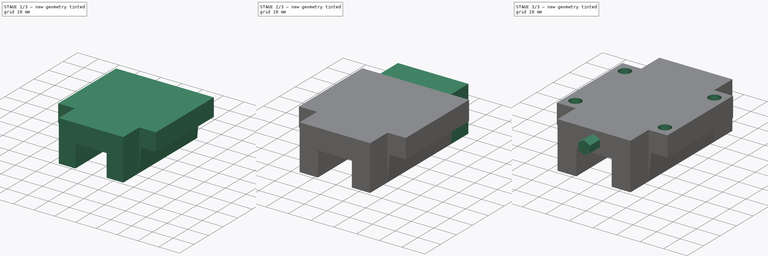
[diagram: build sequence overview — one tinted view per stage of 3, left to right]
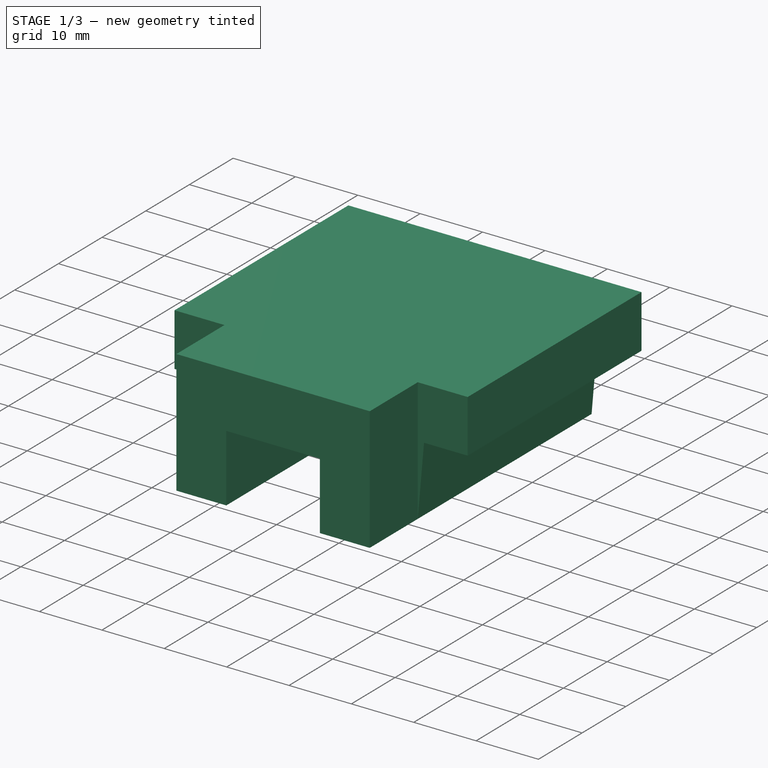
[diagram: stage 1 of 3 — iso view after this stage's code; geometry added in this stage tinted green]
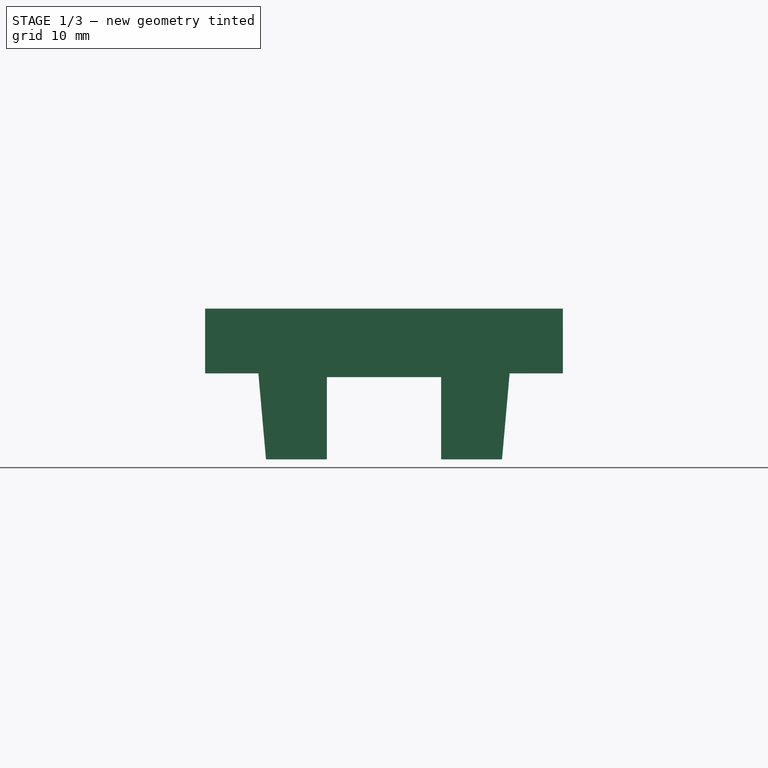
[diagram: stage 1 of 3 — front view after this stage's code; geometry added in this stage tinted green]
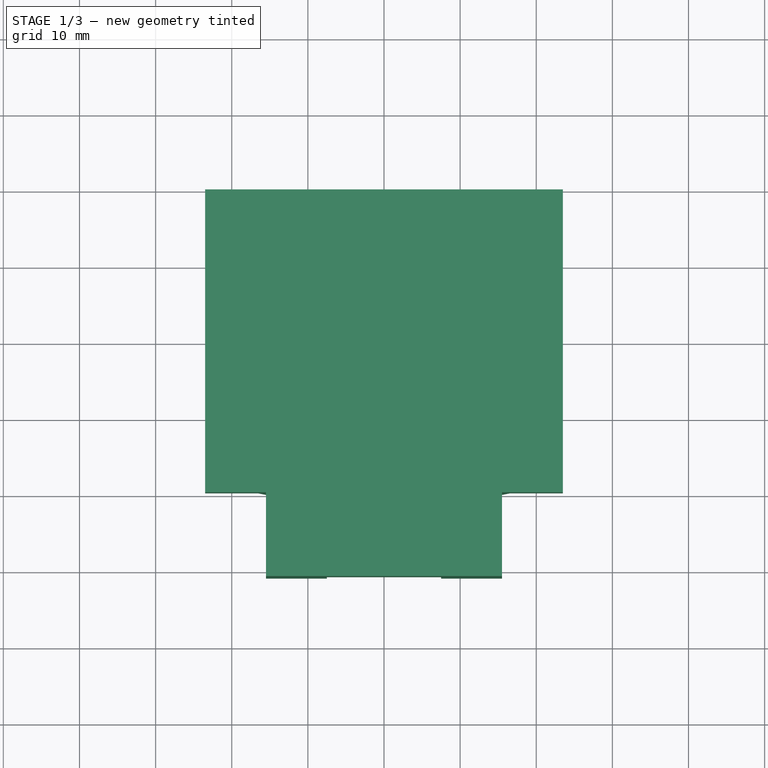
[diagram: stage 1 of 3 — top view after this stage's code; geometry added in this stage tinted green]
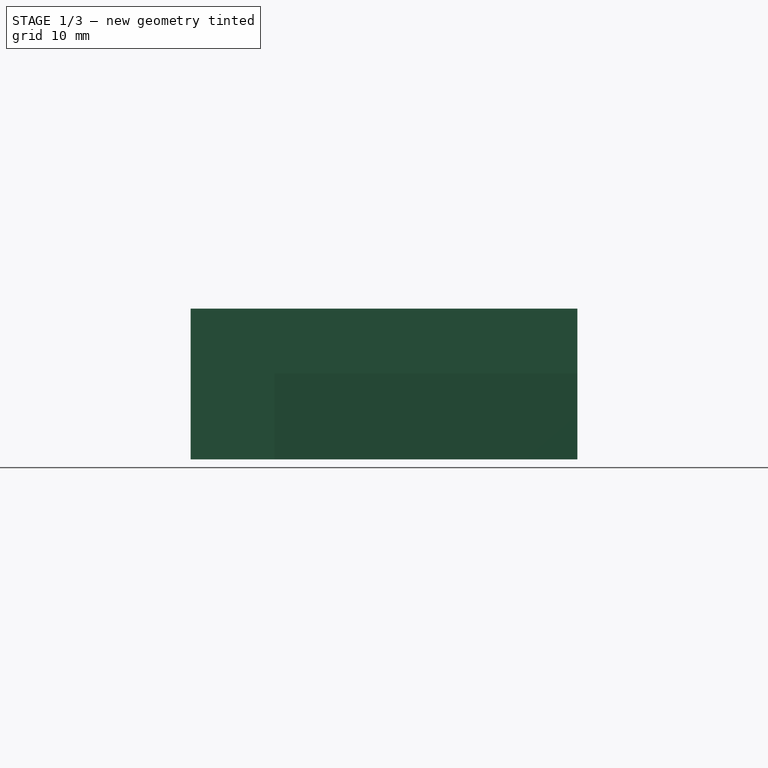
[diagram: stage 1 of 3 — right view after this stage's code; geometry added in this stage tinted green]
FCSTD DOCUMENT  (FreeCAD 0.19R)
Label: TRH15A
License: All rights reserved
LicenseURL: http://en.wikipedia.org/wiki/All_rights_reserved
objects: PartDesign::CoordinateSystem×6, Sketcher::SketchObject×5, PartDesign::Pad×4, PartDesign::Pocket×1, PartDesign::Body×1
note: 22 computed .brp shape members not serialized (recipe doc carries the construction recipe); baked Part::Feature solids carry a one-line shape summary decoded from their .brp

FEATURE [Sketcher::SketchObject] Sketch
  FullyConstrained = true
  MapMode = 5
  Placement = pos=(0,0,0) rot=(1,0,0;1.5708rad)
  Support = -> [XZ_Plane]
  sketch-geometry (12):
    g0: LineSegment StartX=-23.5 StartY=19.8 StartZ=0 EndX=23.5 EndY=19.8 EndZ=0
    g1: LineSegment StartX=-23.5 StartY=19.8 StartZ=0 EndX=-23.5 EndY=11.3 EndZ=0
    g2: LineSegment StartX=23.5 StartY=19.8 StartZ=0 EndX=23.5 EndY=11.3 EndZ=0
    g3: LineSegment StartX=-23.5 StartY=11.3 StartZ=0 EndX=-16.5 EndY=11.3 EndZ=0
    g4: LineSegment StartX=-15.5 StartY=0 StartZ=0 EndX=-16.5 EndY=11.3 EndZ=0
    g5: LineSegment StartX=-15.5 StartY=0 StartZ=0 EndX=-7.5 EndY=0 EndZ=0
    g6: LineSegment StartX=-7.5 StartY=0 StartZ=0 EndX=-7.5 EndY=10.8 EndZ=0
    g7: LineSegment StartX=-7.5 StartY=10.8 StartZ=0 EndX=7.5 EndY=10.8 EndZ=0
    g8: LineSegment StartX=7.5 StartY=10.8 StartZ=0 EndX=7.5 EndY=0 EndZ=0
    g9: LineSegment StartX=7.5 StartY=0 StartZ=0 EndX=15.5 EndY=0 EndZ=0
    g10: LineSegment StartX=15.5 StartY=0 StartZ=0 EndX=16.5 EndY=11.3 EndZ=0
    g11: LineSegment StartX=16.5 StartY=11.3 StartZ=0 EndX=23.5 EndY=11.3 EndZ=0
  constraints (34):
    c: Coincident(g1,g0)
    c: Vertical(g1)
    c: Coincident(g2,g0)
    c: Vertical(g2)
    c: Coincident(g3,g1)
    c: Horizontal(g3)
    c: Coincident(g4,g3)
    c: Coincident(g5,g4)
    c: Horizontal(g5)
    c: Coincident(g6,g5)
    c: Vertical(g6)
    c: Coincident(g7,g6)
    c: Horizontal(g7)
    c: Coincident(g8,g7)
    c: Vertical(g8)
    c: Coincident(g9,g8)
    c: Horizontal(g9)
    c: Coincident(g10,g9)
    c: Coincident(g11,g10)
    c: Coincident(g11,g2)
    c: Horizontal(g11)
    c: Symmetric(g0,g0,g-2)
    c: Equal(g3,g11)
    c: Equal(g1,g2)
    c: Equal(g9,g5)
    c: DistanceX(g7,g7) = 15
    c: DistanceX(g0,g0) = 47
    c: DistanceX(g4,g9) = 31
    c: PointOnObject(g9,g-1)
    c: DistanceY(g9,g0) = 19.8
    c: DistanceY(g1,g0) = 8.5
    c: DistanceX(g3,g10) = 33
    c: Symmetric(g4,g9,g-2)
    c: DistanceY(g6,g0) = 9
FEATURE [PartDesign::Pad] Pad
  Direction = (1,1,1)
  Length = 39.8
  Length2 = 100
  Placement = pos=(0,0,0) rot=(1,0,0;1.5708rad)
  Profile = -> Sketch
  Type = 0
FEATURE [Sketcher::SketchObject] Sketch001
  ExternalGeometry = -> [Pad]
  FullyConstrained = true
  MapMode = 5
  Placement = pos=(0,-39.8,8.8e-15) rot=(1,0,0;1.5708rad)
  Support = -> [Pad]
  sketch-geometry (8):
    g0: LineSegment StartX=-15.5 StartY=0 StartZ=0 EndX=-7.5 EndY=0 EndZ=0
    g1: LineSegment StartX=-7.5 StartY=0 StartZ=0 EndX=-7.5 EndY=10.8 EndZ=0
    g2: LineSegment StartX=-7.5 StartY=10.8 StartZ=0 EndX=7.5 EndY=10.8 EndZ=0
    g3: LineSegment StartX=7.5 StartY=10.8 StartZ=0 EndX=7.5 EndY=0 EndZ=0
    g4: LineSegment StartX=7.5 StartY=0 StartZ=0 EndX=15.5 EndY=0 EndZ=0
    g5: LineSegment StartX=-15.5 StartY=0 StartZ=0 EndX=-15.5 EndY=19.8 EndZ=0
    g6: LineSegment StartX=15.5 StartY=0 StartZ=0 EndX=15.5 EndY=19.8 EndZ=0
    g7: LineSegment StartX=-15.5 StartY=19.8 StartZ=0 EndX=15.5 EndY=19.8 EndZ=0
  constraints (18):
    c: Coincident(g0,g-7)
    c: Coincident(g0,g-7)
    c: Coincident(g1,g0)
    c: Coincident(g1,g-4)
    c: Coincident(g2,g1)
    c: Coincident(g2,g-5)
    c: Coincident(g3,g2)
    c: Coincident(g3,g-6)
    c: Coincident(g4,g3)
    c: Coincident(g4,g-6)
    c: Coincident(g5,g0)
    c: PointOnObject(g5,g-8)
    c: Vertical(g5)
    c: Coincident(g6,g4)
    c: PointOnObject(g6,g-8)
    c: Vertical(g6)
    c: Coincident(g7,g5)
    c: Coincident(g7,g6)
FEATURE [PartDesign::Pad] Pad001
  BaseFeature = -> Pad
  Direction = (1,1,1)
  Length = 11
  Length2 = 100
  Placement = pos=(0,0,0) rot=(1,0,0;1.5708rad)
  Profile = -> Sketch001
  Type = 0
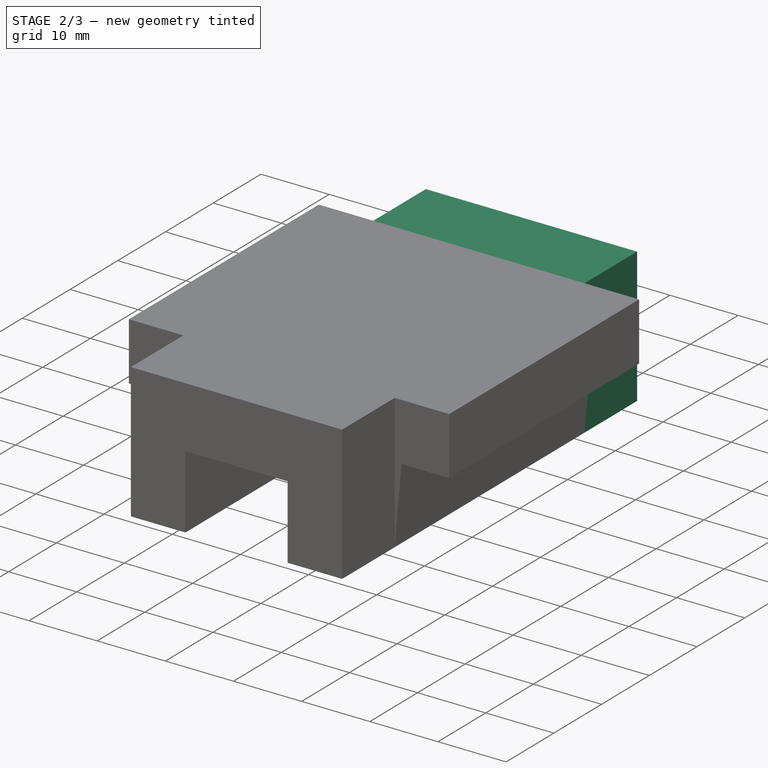
[diagram: stage 2 of 3 — iso view after this stage's code; geometry added in this stage tinted green]
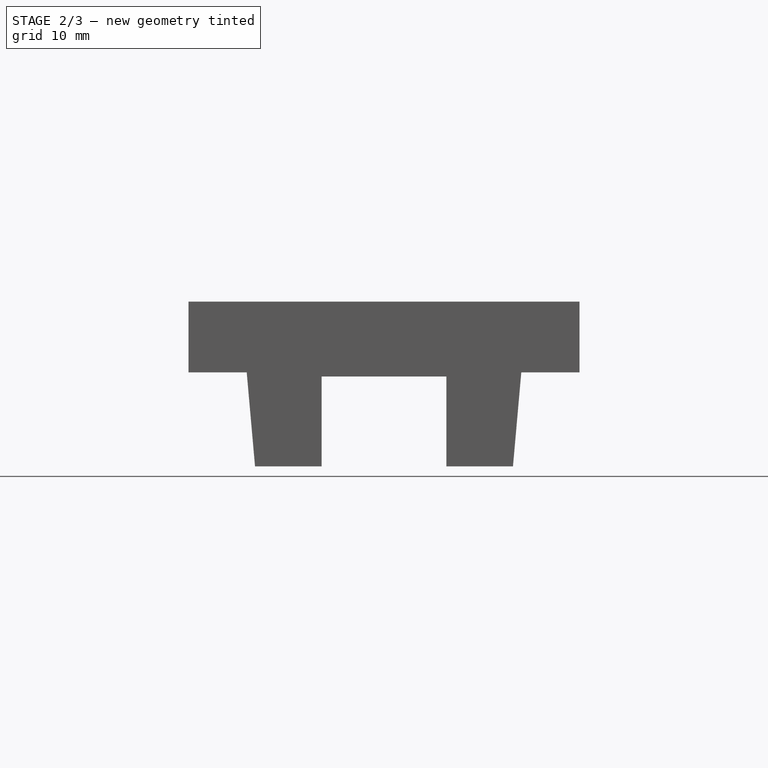
[diagram: stage 2 of 3 — front view after this stage's code; geometry added in this stage tinted green]
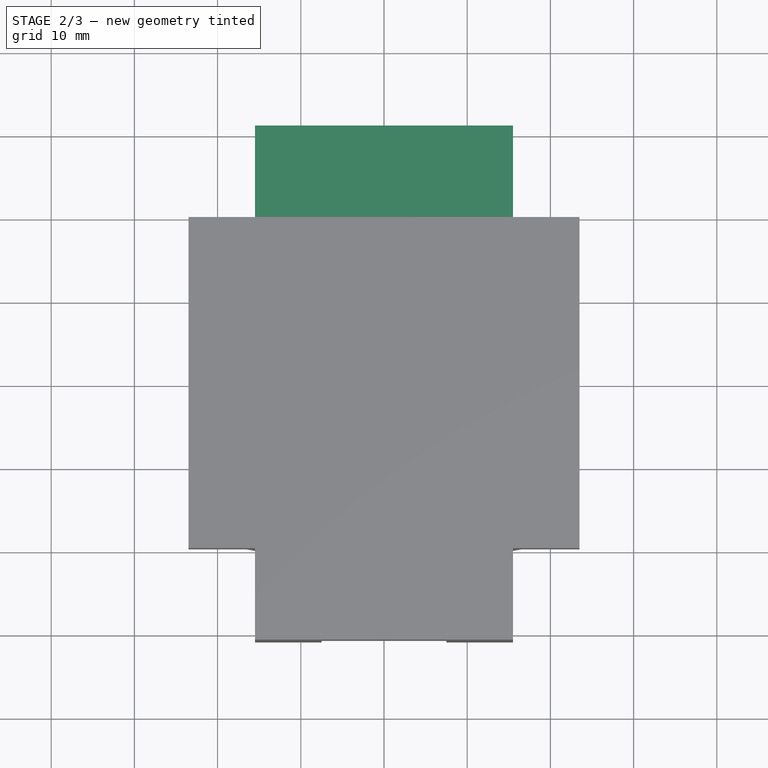
[diagram: stage 2 of 3 — top view after this stage's code; geometry added in this stage tinted green]
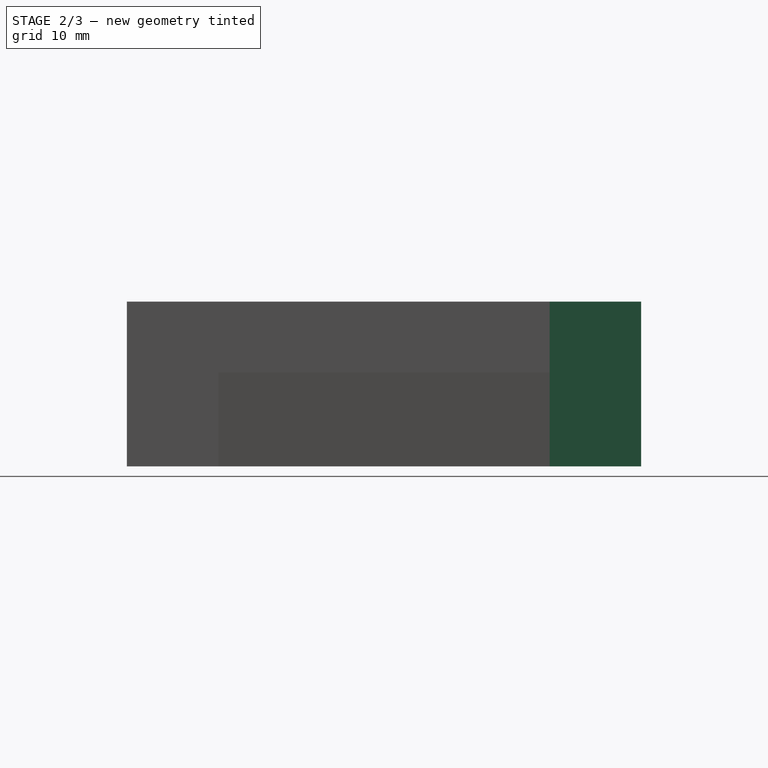
[diagram: stage 2 of 3 — right view after this stage's code; geometry added in this stage tinted green]
FEATURE [Sketcher::SketchObject] Sketch002
  ExternalGeometry = -> [Pad001]
  FullyConstrained = true
  MapMode = 5
  Placement = pos=(0,0,0) rot=(-1,0,0;1.5708rad)
  Support = -> [Pad001]
  sketch-geometry (8):
    g0: LineSegment StartX=-15.5 StartY=0 StartZ=0 EndX=-7.5 EndY=0 EndZ=0
    g1: LineSegment StartX=-7.5 StartY=0 StartZ=0 EndX=-7.5 EndY=-10.8 EndZ=0
    g2: LineSegment StartX=-7.5 StartY=-10.8 StartZ=0 EndX=7.5 EndY=-10.8 EndZ=0
    g3: LineSegment StartX=7.5 StartY=-10.8 StartZ=0 EndX=7.5 EndY=0 EndZ=0
    g4: LineSegment StartX=7.5 StartY=0 StartZ=0 EndX=15.5 EndY=0 EndZ=0
    g5: LineSegment StartX=15.5 StartY=0 StartZ=0 EndX=15.5 EndY=-19.8 EndZ=0
    g6: LineSegment StartX=15.5 StartY=-19.8 StartZ=0 EndX=-15.5 EndY=-19.8 EndZ=0
    g7: LineSegment StartX=-15.5 StartY=-19.8 StartZ=0 EndX=-15.5 EndY=0 EndZ=0
  constraints (19):
    c: Coincident(g-3,g0)
    c: PointOnObject(g0,g-3)
    c: Coincident(g0,g1)
    c: Coincident(g1,g-5)
    c: Vertical(g1)
    c: Coincident(g1,g2)
    c: Coincident(g2,g-6)
    c: Coincident(g2,g3)
    c: Coincident(g3,g-7)
    c: Coincident(g3,g4)
    c: Coincident(g4,g5)
    c: Vertical(g5)
    c: Coincident(g5,g6)
    c: PointOnObject(g6,g-8)
    c: Horizontal(g6)
    c: Coincident(g6,g7)
    c: Coincident(g7,g0)
    c: Vertical(g7)
    c: Coincident(g-7,g4)
FEATURE [PartDesign::Pad] Pad002
  BaseFeature = -> Pad001
  Direction = (1,1,1)
  Length = 11
  Length2 = 100
  Placement = pos=(0,0,0) rot=(1,0,0;1.5708rad)
  Profile = -> Sketch002
  Type = 0
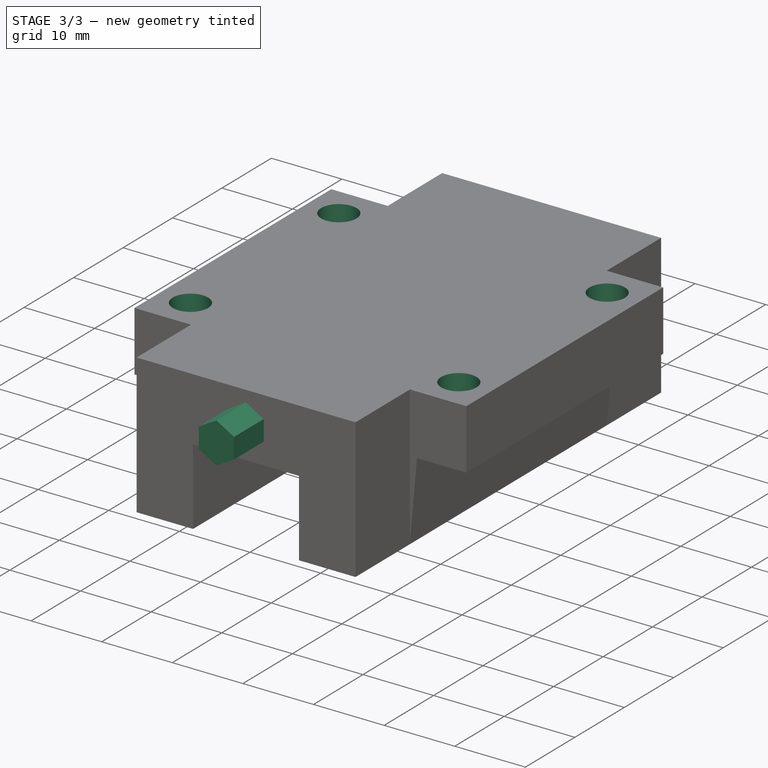
[diagram: stage 3 of 3 — iso view after this stage's code; geometry added in this stage tinted green]
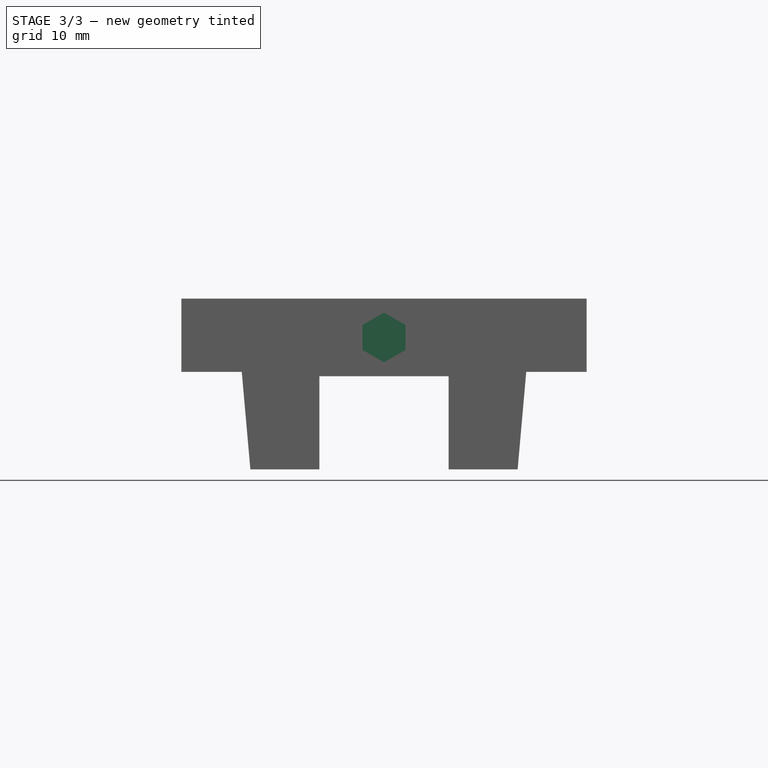
[diagram: stage 3 of 3 — front view after this stage's code; geometry added in this stage tinted green]
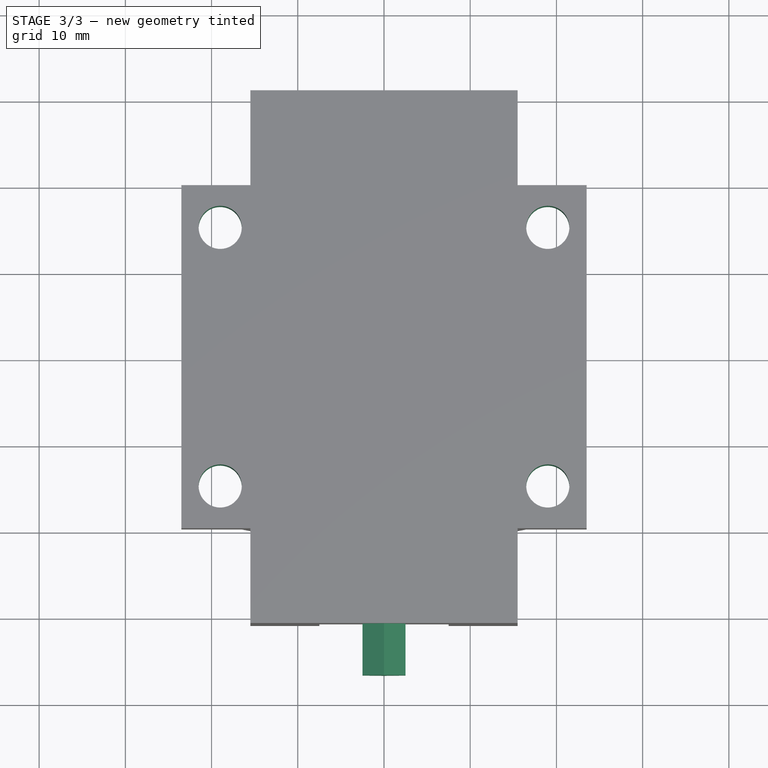
[diagram: stage 3 of 3 — top view after this stage's code; geometry added in this stage tinted green]
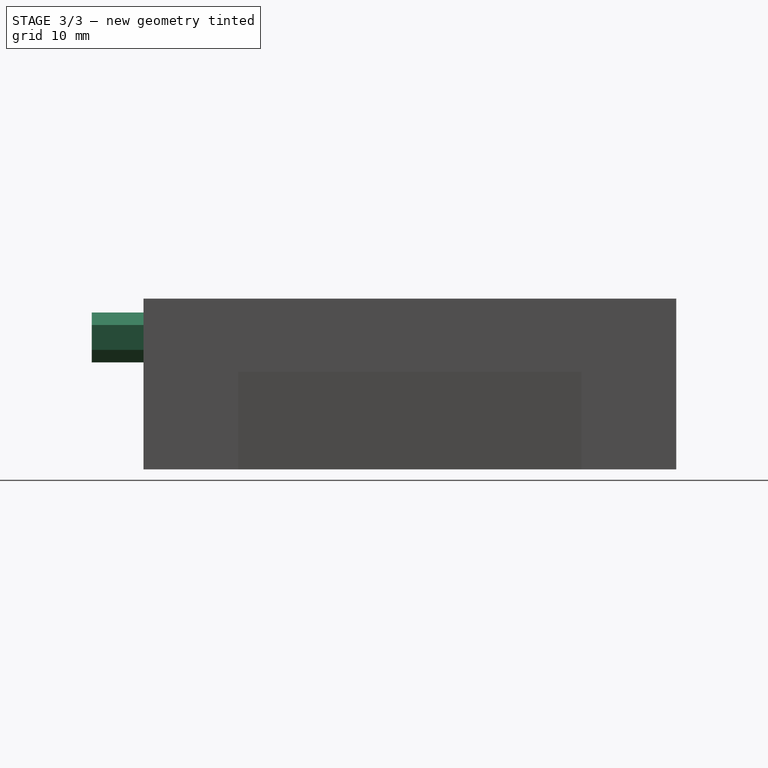
[diagram: stage 3 of 3 — right view after this stage's code; geometry added in this stage tinted green]
FEATURE [Sketcher::SketchObject] Sketch003
  ExternalGeometry = -> [Pad002]
  FullyConstrained = true
  MapMode = 5
  Placement = pos=(0,-50.8,3.66e-14) rot=(1,0,0;1.5708rad)
  Support = -> [Pad002]
  sketch-geometry (7):
    g0: LineSegment StartX=0 StartY=12.4132 StartZ=0 EndX=2.5 EndY=13.8566 EndZ=0
    g1: LineSegment StartX=2.5 StartY=13.8566 StartZ=0 EndX=2.5 EndY=16.7434 EndZ=0
    g2: LineSegment StartX=2.5 StartY=16.7434 StartZ=0 EndX=-4e-16 EndY=18.1868 EndZ=0
    g3: LineSegment StartX=-4e-16 StartY=18.1868 StartZ=0 EndX=-2.5 EndY=16.7434 EndZ=0
    g4: LineSegment StartX=-2.5 StartY=16.7434 StartZ=0 EndX=-2.5 EndY=13.8566 EndZ=0
    g5: LineSegment StartX=-2.5 StartY=13.8566 StartZ=0 EndX=0 EndY=12.4132 EndZ=0
    g6: Circle CenterX=0 CenterY=15.3 CenterZ=0 NormalX=0 NormalY=0 NormalZ=1 AngleXU=0 Radius=2.88675
  constraints (17):
    c: Coincident(g0,g1)
    c: Coincident(g1,g2)
    c: Coincident(g2,g3)
    c: Coincident(g3,g4)
    c: Coincident(g4,g5)
    c: Coincident(g5,g0)
    c: Equal(g0, g1-g5) x5
    c: PointOnObject(g0,g6)
    c: PointOnObject(g1,g6)
    c: PointOnObject(g2,g6)
    c: PointOnObject(g3,g6)
    c: PointOnObject(g4,g6)
    c: PointOnObject(g5,g6)
    c: PointOnObject(g6,g-2)
    c: PointOnObject(g0,g-2)
    c: DistanceX(g3,g1) = 5
    c: DistanceY(g6,g-3) = 4.5
FEATURE [PartDesign::Pad] Pad003
  BaseFeature = -> Pad002
  Direction = (1,1,1)
  Length = 6
  Length2 = 100
  Placement = pos=(0,0,0) rot=(1,0,0;1.5708rad)
  Profile = -> Sketch003
  Type = 0
FEATURE [Sketcher::SketchObject] Sketch004
  FullyConstrained = true
  MapMode = 5
  Placement = pos=(0,8.7e-15,19.8) rot=(0,0,1;3.14159rad)
  Support = -> [Pad003]
  sketch-geometry (4):
    g0: Circle CenterX=-19 CenterY=34.9 CenterZ=0 NormalX=0 NormalY=0 NormalZ=1 AngleXU=0 Radius=2.5
    g1: Circle CenterX=-19 CenterY=4.9 CenterZ=0 NormalX=0 NormalY=0 NormalZ=1 AngleXU=0 Radius=2.5
    g2: Circle CenterX=19 CenterY=4.9 CenterZ=0 NormalX=0 NormalY=0 NormalZ=1 AngleXU=0 Radius=2.5
    g3: Circle CenterX=19 CenterY=34.9 CenterZ=0 NormalX=0 NormalY=0 NormalZ=1 AngleXU=0 Radius=2.5
  constraints (10):
    c: Equal(g0,g3)
    c: Equal(g3,g2)
    c: Equal(g2,g1)
    c: Diameter(g3) = 5
    c: Symmetric(g1,g2,g-2)
    c: Symmetric(g3,g0,g-2)
    c: DistanceX(g0,g3) = 38
    c: DistanceX(g1,g2) = 38
    c: DistanceY(g2,g3) = 30
    c: DistanceY(g-1,g2) = 4.9
FEATURE [PartDesign::Pocket] Pocket
  BaseFeature = -> Pad003
  Length = 5
  Length2 = 100
  Placement = pos=(0,0,0) rot=(1,0,0;1.5708rad)
  Profile = -> Sketch004
  Type = 1
FEATURE [PartDesign::CoordinateSystem] LCS_MOUNT
  AttacherType = Attacher::AttachEngine3D
  MapMode = 5
  Placement = pos=(0,4.8e-15,10.8) rot=(1,0,0;3.14159rad)
  Support = -> [Pocket]
FEATURE [PartDesign::CoordinateSystem] LCS_TOP_MOUNT
  AttacherType = Attacher::AttachEngine3D
  AttachmentOffset = pos=(0,19.9,0) rot=(0,0,1;0rad)
  MapMode = 5
  Placement = pos=(0,-19.9,19.8) rot=(0,0,1;3.14159rad)
  Support = -> [Pocket]
FEATURE [PartDesign::CoordinateSystem] LCS_h1
  AttacherType = Attacher::AttachEngine3D
  MapMode = 11
  Placement = pos=(-19,-34.9,19.8) rot=(0,0,-1;1.5708rad)
  Support = -> [Pocket]
FEATURE [PartDesign::CoordinateSystem] LCS_h2
  AttacherType = Attacher::AttachEngine3D
  MapMode = 11
  Placement = pos=(-19,-4.9,19.8) rot=(0,0,-1;1.5708rad)
  Support = -> [Pocket]
FEATURE [PartDesign::CoordinateSystem] LCS_h3
  AttacherType = Attacher::AttachEngine3D
  MapMode = 11
  Placement = pos=(19,-34.9,19.8) rot=(0,0,-1;1.5708rad)
  Support = -> [Pocket]
FEATURE [PartDesign::CoordinateSystem] LCS_h4
  AttacherType = Attacher::AttachEngine3D
  MapMode = 11
  Placement = pos=(19,-4.9,19.8) rot=(0,0,-1;1.5708rad)
  Support = -> [Pocket]
FEATURE [PartDesign::Body] Body
  Group = -> [Sketch,Pad,Sketch001,Pad001,Sketch002,Pad002,Sketch003,Pad003,Sketch004,Pocket,LCS_MOUNT,LCS_TOP_MOUNT,LCS_h1,LCS_h2,LCS_h3,LCS_h4]
  Origin = -> Origin
  Tip = -> Pocket
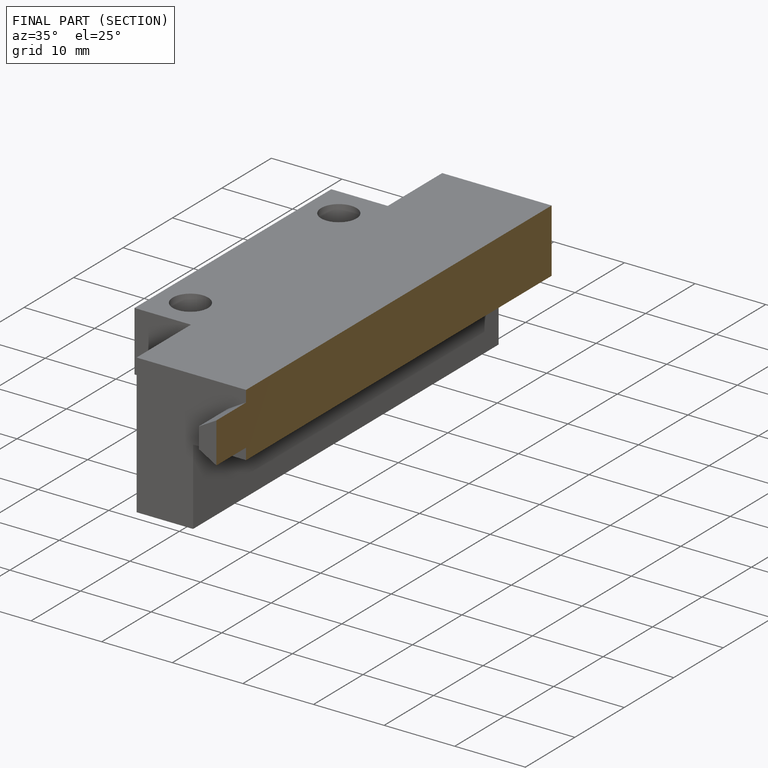
[diagram: finished part — half-section view (interior)]
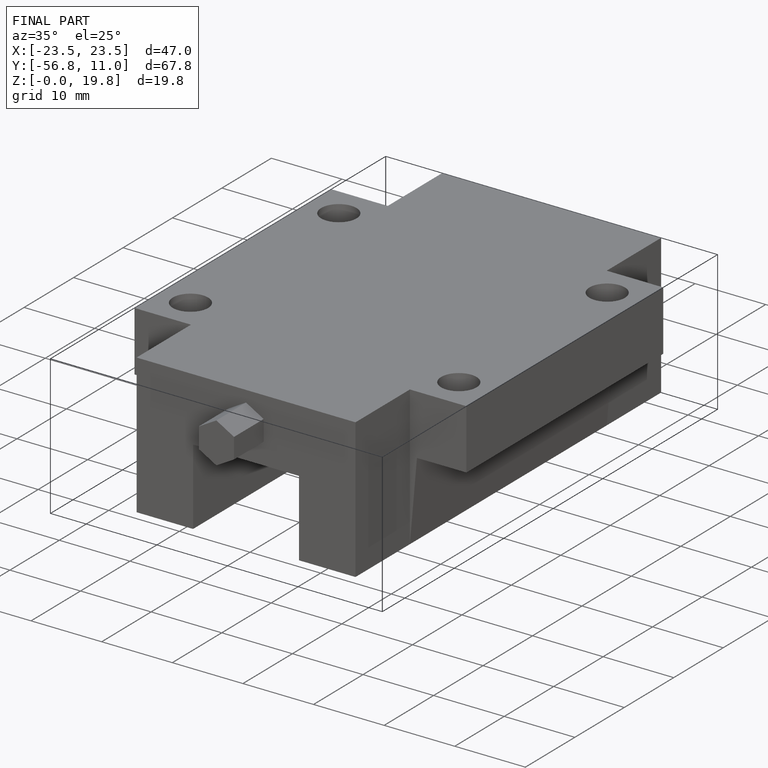
[diagram: finished part — iso view with bounding-box wireframe]
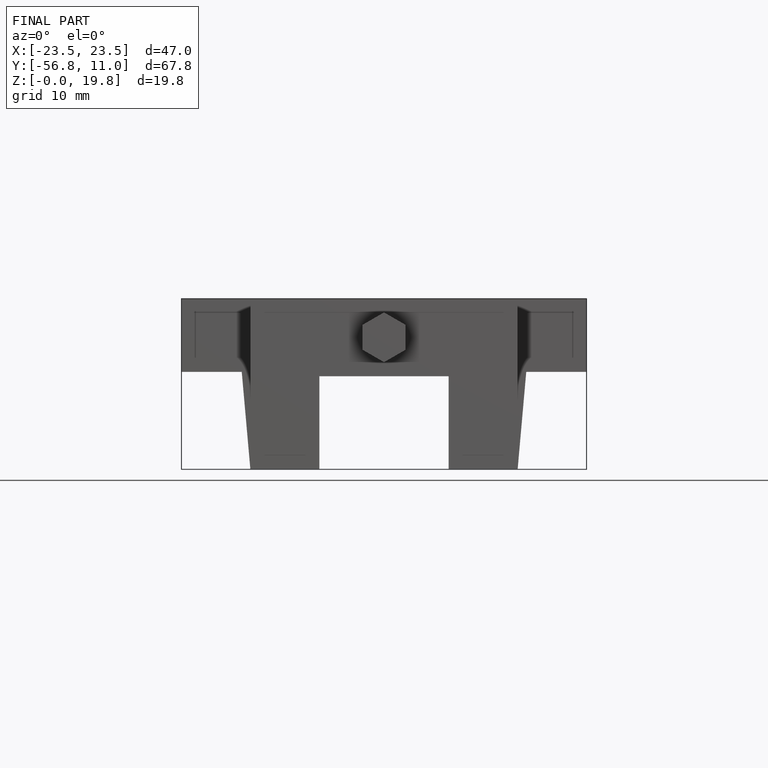
[diagram: finished part — front view with bounding-box wireframe]
